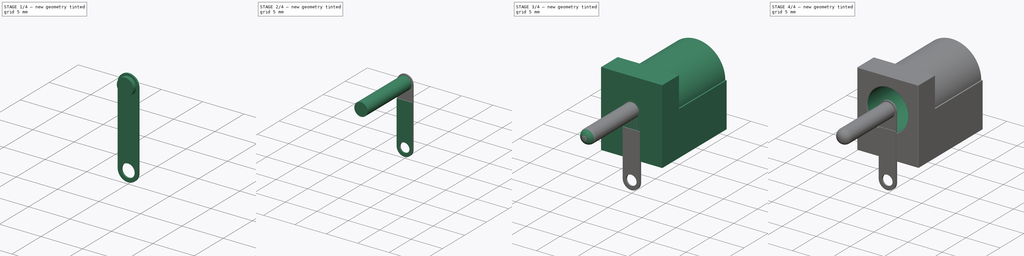
[diagram: build sequence overview — one tinted view per stage of 4, left to right]
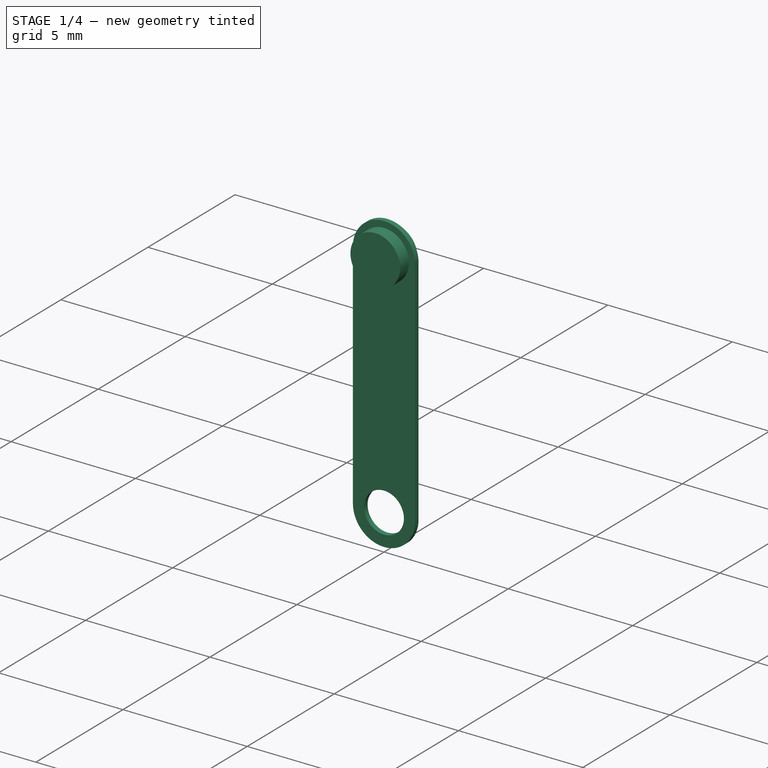
[diagram: stage 1 of 4 — iso view after this stage's code; geometry added in this stage tinted green]
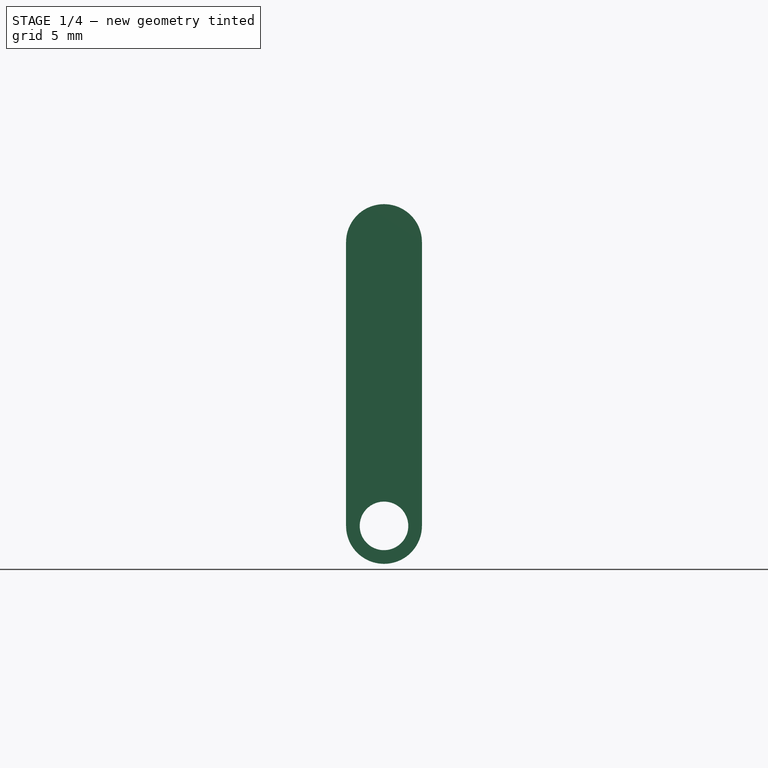
[diagram: stage 1 of 4 — front view after this stage's code; geometry added in this stage tinted green]
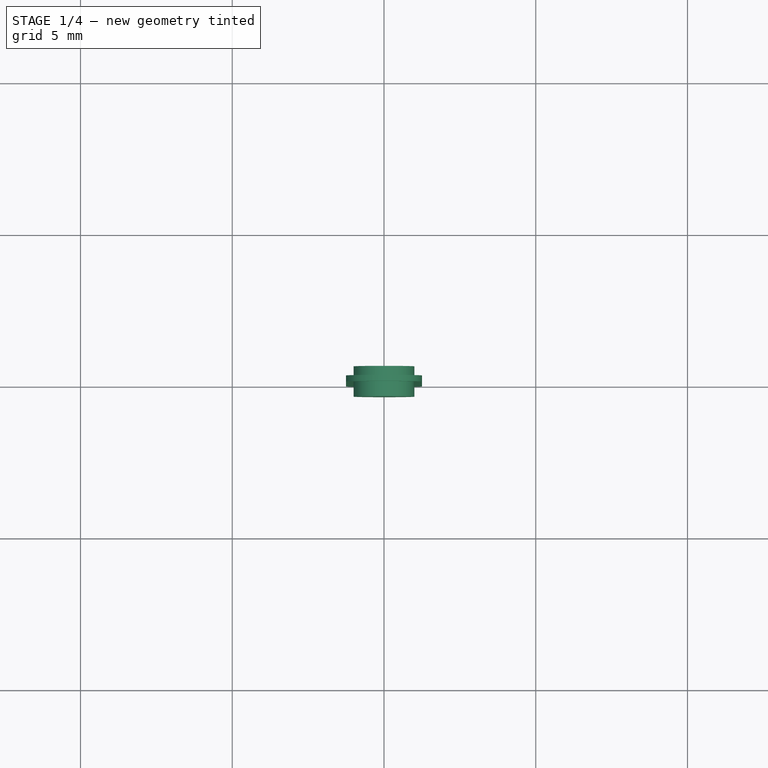
[diagram: stage 1 of 4 — top view after this stage's code; geometry added in this stage tinted green]
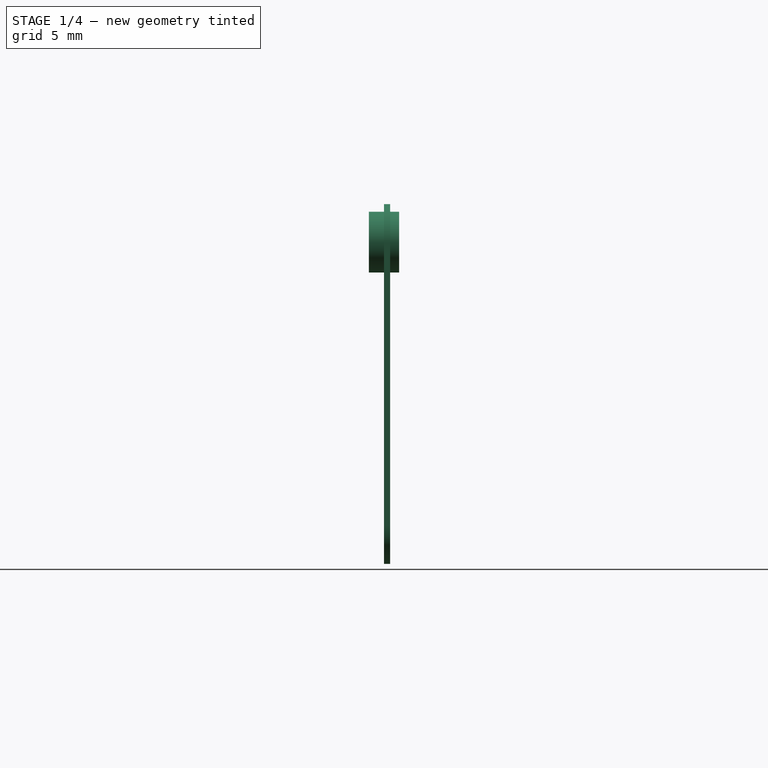
[diagram: stage 1 of 4 — right view after this stage's code; geometry added in this stage tinted green]
FCSTD DOCUMENT  (FreeCAD 0.17R13522 (Git))
Label: NINIGI-PC-GK2.1
License: All rights reserved
LicenseURL: http://fr.wikipedia.org/wiki/<copyright redacted>
objects: Sketcher::SketchObject×8, PartDesign::Pad×7, PartDesign::Body×5, PartDesign::Fillet×2, PartDesign::Pocket×1
note: 31 computed .brp shape members not serialized (recipe doc carries the construction recipe); baked Part::Feature solids carry a one-line shape summary decoded from their .brp

FEATURE [PartDesign::Body] Body003
  Group = -> [Sketch005,Pad004]
  Origin = -> Origin003
  Placement = pos=(4.8,11,0) rot=(0,0,1;1.5708rad)
  Tip = -> Pad004
FEATURE [Sketcher::SketchObject] Sketch006
  MapMode = 5
  Placement = pos=(0,0,0) rot=(1,0,0;1.5708rad)
  Support = -> [XZ_Plane004]
  expr: Constraints[9] = 4.0999999999999996 - 2.5 / 2 + 6.5
  sketch-geometry (6):
    g0: LineSegment StartX=1.25 StartY=-2.4e-11 StartZ=0 EndX=1.25 EndY=-9.35 EndZ=0
    g1: LineSegment StartX=-1.25 StartY=-9.35 StartZ=0 EndX=-1.25 EndY=-2.4e-11 EndZ=0
    g2: ArcOfCircle CenterX=0 CenterY=-9.35 CenterZ=0 NormalX=0 NormalY=0 NormalZ=1 AngleXU=0 Radius=1.25 StartAngle=3.14159 EndAngle=6.28319
    g3: Circle CenterX=0 CenterY=-9.35 CenterZ=0 NormalX=0 NormalY=0 NormalZ=1 AngleXU=0 Radius=0.8
    g4: ArcOfCircle CenterX=0 CenterY=0 CenterZ=0 NormalX=0 NormalY=0 NormalZ=1 AngleXU=0 Radius=1.25 StartAngle=-1.9e-11 EndAngle=3.14159
    g5: Circle CenterX=0 CenterY=0 CenterZ=0 NormalX=0 NormalY=0 NormalZ=1 AngleXU=0 Radius=0.8
  constraints (17):
    c: Vertical(g0)
    c: Vertical(g1)
    c: Coincident(g2,g0)
    c: Horizontal(g1,g0)
    c: Coincident(g3,g2)
    c: Coincident(g2,g1)
    c: DistanceX(g1,g0) = 2.5
    c: Horizontal(g2,g0)
    c: Radius(g3) = 0.8
    c: DistanceY(g2,g1) = 9.35
    c: DistanceY(g1,g-1) = 0
    c: Coincident(g4,g1)
    c: Coincident(g4,g0)
    c: Coincident(g4,g-1)
    c: Horizontal(g0,g1)
    c: Coincident(g5,g-1)
    c: Radius(g5) = 0.8
FEATURE [PartDesign::Pad] Pad005
  Length = 0.2
  Length2 = 100
  Placement = pos=(0,0,0) rot=(1,0,0;1.5708rad)
  Profile = -> Sketch006
  Reversed = true
  Type = 0
FEATURE [Sketcher::SketchObject] Sketch007
  MapMode = 5
  Placement = pos=(0,0,0) rot=(1,0,0;1.5708rad)
  Support = -> [XZ_Plane004]
  sketch-geometry (1):
    g0: Circle CenterX=0 CenterY=0 CenterZ=0 NormalX=0 NormalY=0 NormalZ=1 AngleXU=0 Radius=1
  constraints (2):
    c: Coincident(g0,g-1)
    c: Radius(g0) = 1
FEATURE [PartDesign::Pad] Pad006
  BaseFeature = -> Pad005
  Length = 1
  Length2 = 100
  Midplane = true
  Placement = pos=(0,0,0) rot=(1,0,0;1.5708rad)
  Profile = -> Sketch007
  Type = 0
FEATURE [PartDesign::Body] Body004
  Group = -> [Sketch006,Pad005,Sketch007,Pad006]
  Origin = -> Origin004
  Placement = pos=(0,13.5,0) rot=(0,0,1;0rad)
  Tip = -> Pad006
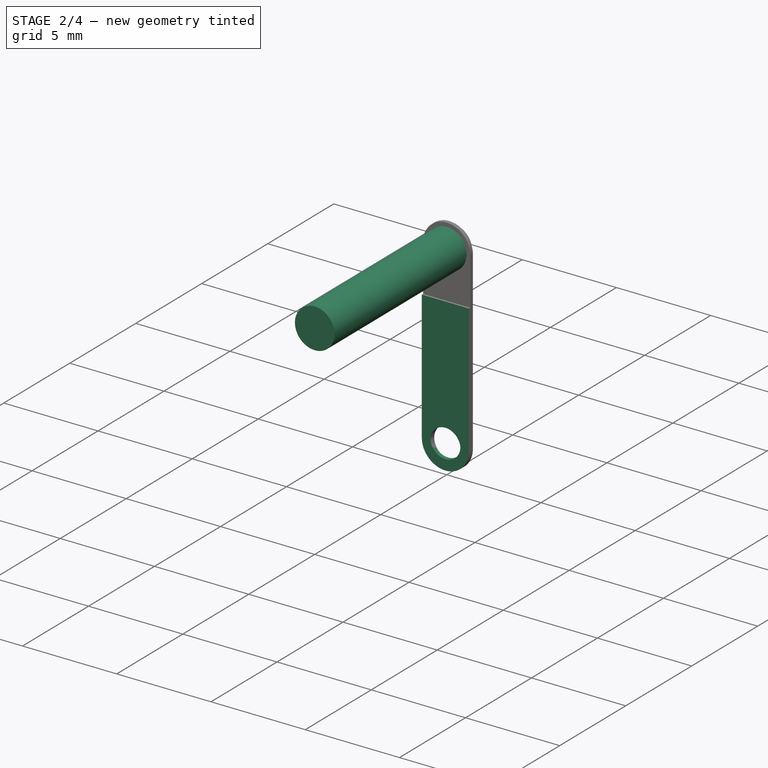
[diagram: stage 2 of 4 — iso view after this stage's code; geometry added in this stage tinted green]
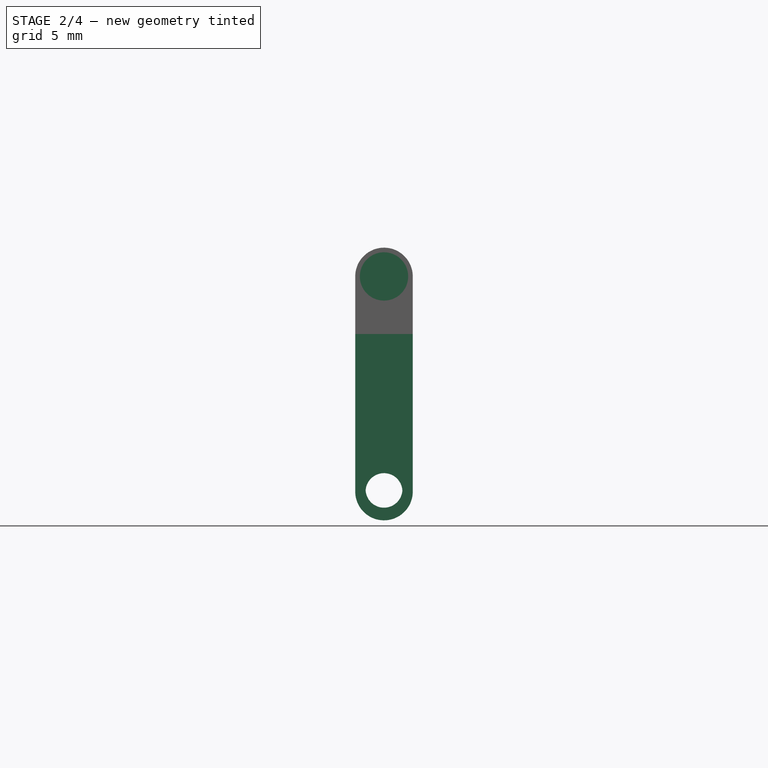
[diagram: stage 2 of 4 — front view after this stage's code; geometry added in this stage tinted green]
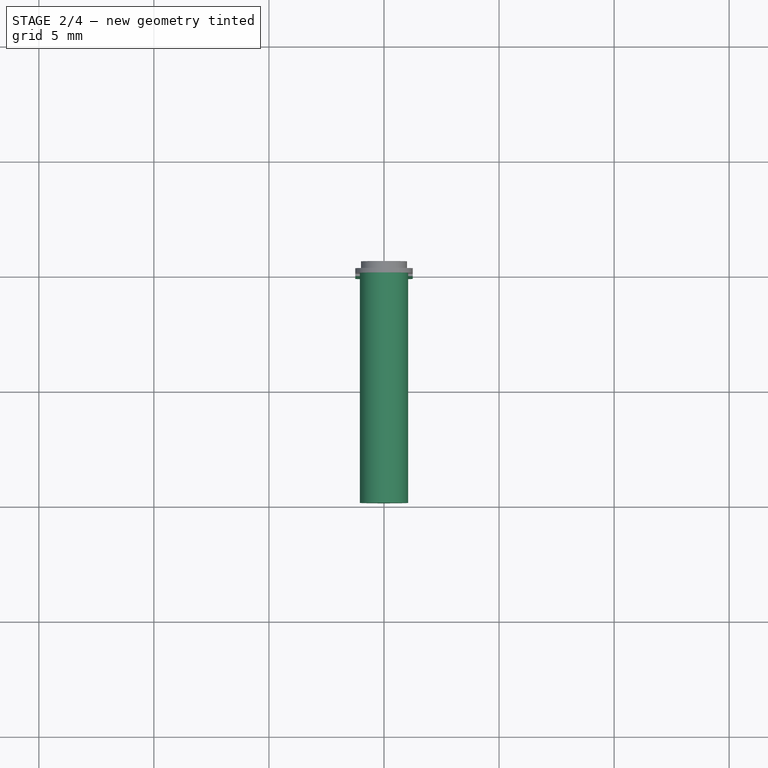
[diagram: stage 2 of 4 — top view after this stage's code; geometry added in this stage tinted green]
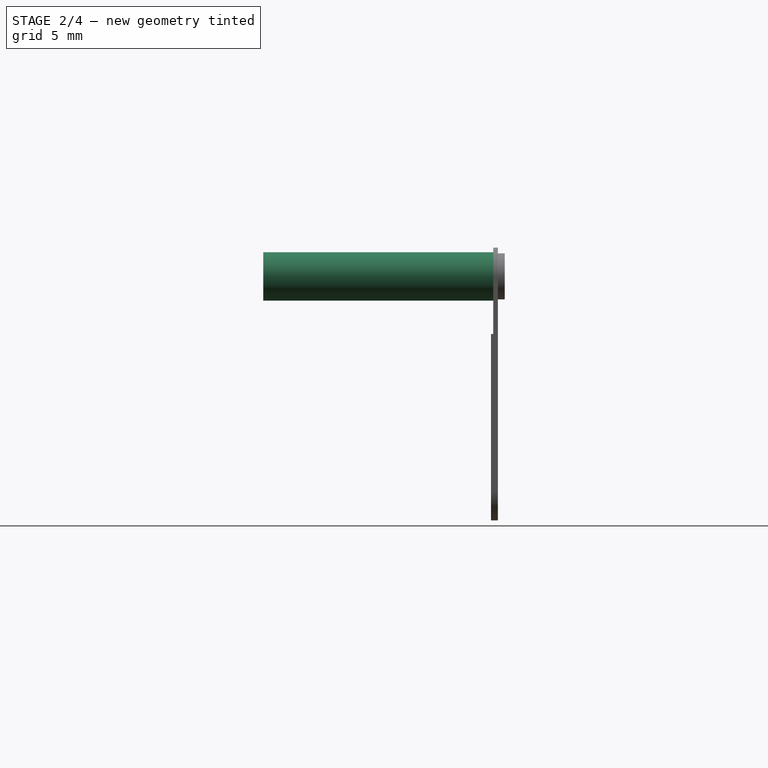
[diagram: stage 2 of 4 — right view after this stage's code; geometry added in this stage tinted green]
FEATURE [PartDesign::Body] Body
  Group = -> [Sketch,Pad,Sketch001,Pad001,Sketch002,Pocket,Fillet]
  Origin = -> Origin
  Tip = -> Fillet
FEATURE [Sketcher::SketchObject] Sketch003
  MapMode = 5
  Placement = pos=(0,0,0) rot=(1,0,0;1.5708rad)
  Support = -> [XZ_Plane001]
  sketch-geometry (1):
    g0: Circle CenterX=0 CenterY=0 CenterZ=0 NormalX=0 NormalY=0 NormalZ=1 AngleXU=0 Radius=1.05
  constraints (2):
    c: Coincident(g0,g-1)
    c: Radius(g0) = 1.05
FEATURE [PartDesign::Pad] Pad002
  Length = 10
  Length2 = 100
  Placement = pos=(0,0,0) rot=(1,0,0;1.5708rad)
  Profile = -> Sketch003
  Type = 0
FEATURE [PartDesign::Body] Body001
  Group = -> [Sketch003,Pad002,Fillet001]
  Origin = -> Origin001
  Placement = pos=(0,11,0) rot=(0,0,1;0rad)
  Tip = -> Fillet001
FEATURE [Sketcher::SketchObject] Sketch004
  MapMode = 5
  Placement = pos=(0,0,0) rot=(1,0,0;1.5708rad)
  Support = -> [XZ_Plane002]
  expr: Constraints[13] = 4.0999999999999996 - 2.5 / 2
  sketch-geometry (5):
    g0: LineSegment StartX=-1.25 StartY=-6.5 StartZ=0 EndX=1.25 EndY=-6.5 EndZ=0
    g1: LineSegment StartX=1.25 StartY=-6.5 StartZ=0 EndX=1.25 EndY=-9.35 EndZ=0
    g2: LineSegment StartX=-1.25 StartY=-9.35 StartZ=0 EndX=-1.25 EndY=-6.5 EndZ=0
    g3: ArcOfCircle CenterX=0 CenterY=-9.35 CenterZ=0 NormalX=0 NormalY=0 NormalZ=1 AngleXU=0 Radius=1.25 StartAngle=3.14159 EndAngle=6.28319
    g4: Circle CenterX=0 CenterY=-9.35 CenterZ=0 NormalX=0 NormalY=0 NormalZ=1 AngleXU=0 Radius=0.8
  constraints (15):
    c: Coincident(g0,g1)
    c: Coincident(g2,g0)
    c: Horizontal(g0)
    c: Vertical(g1)
    c: Vertical(g2)
    c: PointOnObject(g3,g-2)
    c: Coincident(g3,g1)
    c: Horizontal(g2,g1)
    c: Coincident(g4,g3)
    c: Coincident(g3,g2)
    c: DistanceX(g0,g0) = 2.5
    c: Horizontal(g3,g1)
    c: Radius(g4) = 0.8
    c: DistanceY(g3,g0) = 2.85
    c: DistanceY(g0,g-1) = 6.5
FEATURE [PartDesign::Pad] Pad003
  Length = 0.2
  Length2 = 100
  Midplane = true
  Placement = pos=(0,0,0) rot=(1,0,0;1.5708rad)
  Profile = -> Sketch004
  Type = 0
FEATURE [PartDesign::Body] Body002
  Group = -> [Sketch004,Pad003]
  Origin = -> Origin002
  Placement = pos=(0,7.5,0) rot=(0,0,1;0rad)
  Tip = -> Pad003
FEATURE [Sketcher::SketchObject] Sketch005
  MapMode = 5
  Placement = pos=(0,0,0) rot=(1,0,0;1.5708rad)
  Support = -> [XZ_Plane003]
  expr: Constraints[13] = 8 - 2.5 / 2
  sketch-geometry (5):
    g0: LineSegment StartX=-1.25 StartY=-2.5 StartZ=0 EndX=1.25 EndY=-2.5 EndZ=0
    g1: LineSegment StartX=1.25 StartY=-2.5 StartZ=0 EndX=1.25 EndY=-9.25 EndZ=0
    g2: LineSegment StartX=-1.25 StartY=-9.25 StartZ=0 EndX=-1.25 EndY=-2.5 EndZ=0
    g3: ArcOfCircle CenterX=0 CenterY=-9.25 CenterZ=0 NormalX=0 NormalY=0 NormalZ=1 AngleXU=0 Radius=1.25 StartAngle=3.14159 EndAngle=6.28319
    g4: Circle CenterX=0 CenterY=-9.25 CenterZ=0 NormalX=0 NormalY=0 NormalZ=1 AngleXU=0 Radius=0.8
  constraints (15):
    c: Coincident(g0,g1)
    c: Coincident(g2,g0)
    c: Horizontal(g0)
    c: Vertical(g1)
    c: Vertical(g2)
    c: PointOnObject(g3,g-2)
    c: Coincident(g3,g1)
    c: Horizontal(g2,g1)
    c: Coincident(g4,g3)
    c: Coincident(g3,g2)
    c: DistanceX(g0,g0) = 2.5
    c: Horizontal(g3,g1)
    c: Radius(g4) = 0.8
    c: DistanceY(g3,g0) = 6.75
    c: DistanceY(g0,g-1) = 2.5
FEATURE [PartDesign::Pad] Pad004
  Length = 0.2
  Length2 = 100
  Midplane = true
  Placement = pos=(0,0,0) rot=(1,0,0;1.5708rad)
  Profile = -> Sketch005
  Type = 0
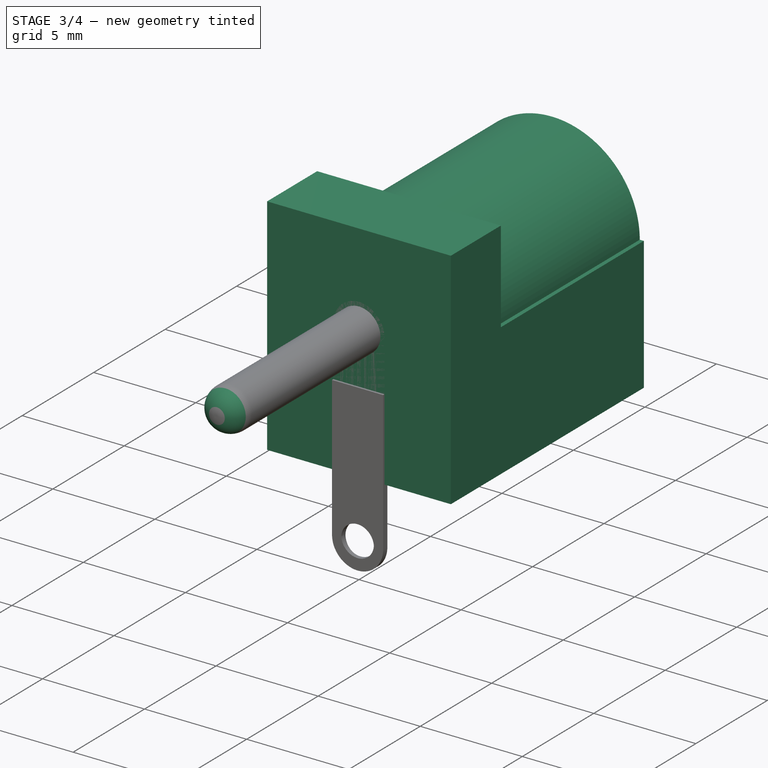
[diagram: stage 3 of 4 — iso view after this stage's code; geometry added in this stage tinted green]
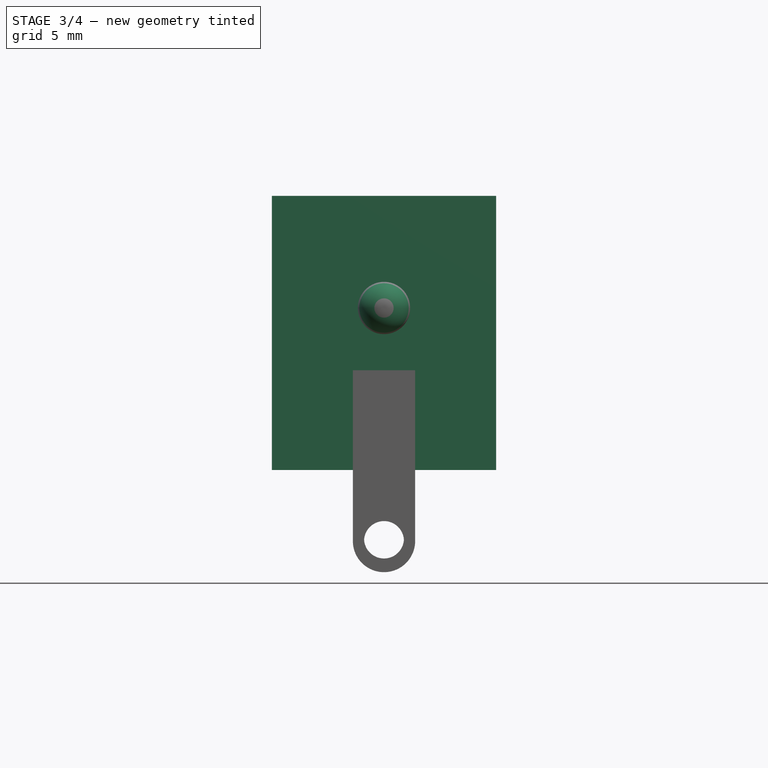
[diagram: stage 3 of 4 — front view after this stage's code; geometry added in this stage tinted green]
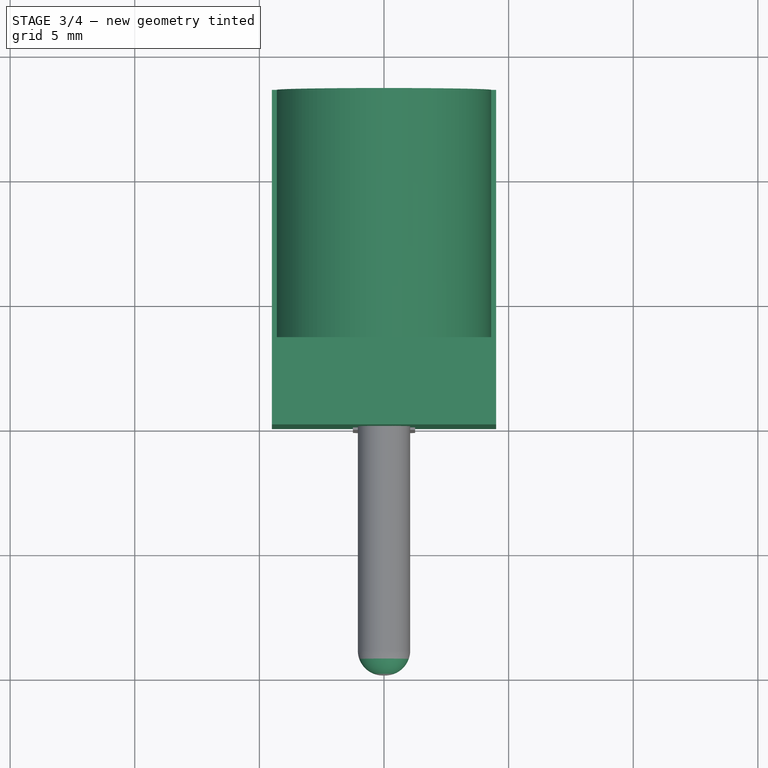
[diagram: stage 3 of 4 — top view after this stage's code; geometry added in this stage tinted green]
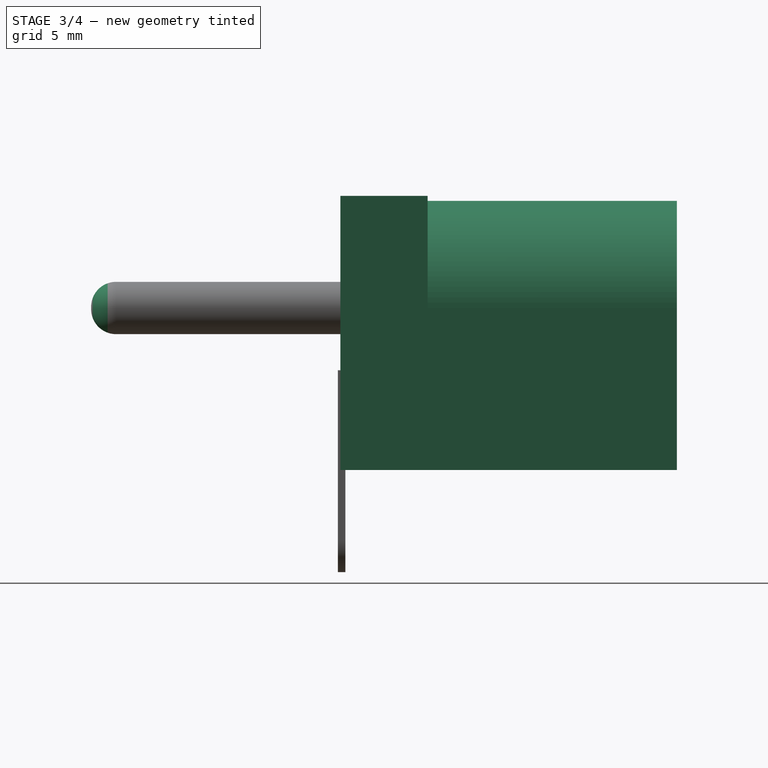
[diagram: stage 3 of 4 — right view after this stage's code; geometry added in this stage tinted green]
FEATURE [Sketcher::SketchObject] Sketch
  MapMode = 5
  Placement = pos=(0,0,0) rot=(1,0,0;1.5708rad)
  Support = -> [XZ_Plane]
  sketch-geometry (4):
    g0: LineSegment StartX=-4.5 StartY=-6.5 StartZ=0 EndX=4.5 EndY=-6.5 EndZ=0
    g1: LineSegment StartX=4.5 StartY=-6.5 StartZ=0 EndX=4.5 EndY=4.5 EndZ=0
    g2: LineSegment StartX=4.5 StartY=4.5 StartZ=0 EndX=-4.5 EndY=4.5 EndZ=0
    g3: LineSegment StartX=-4.5 StartY=4.5 StartZ=0 EndX=-4.5 EndY=-6.5 EndZ=0
  constraints (12):
    c: Coincident(g0,g1)
    c: Coincident(g1,g2)
    c: Coincident(g2,g3)
    c: Coincident(g3,g0)
    c: Horizontal(g0)
    c: Horizontal(g2)
    c: Vertical(g1)
    c: Vertical(g3)
    c: DistanceY(g3,g3) = 11
    c: DistanceX(g2,g2) = 9
    c: DistanceX(g0) = -4.5
    c: DistanceY(g0) = -6.5
FEATURE [PartDesign::Pad] Pad
  Length = 3.5
  Length2 = 100
  Placement = pos=(0,0,0) rot=(1,0,0;1.5708rad)
  Profile = -> Sketch
  Reversed = true
  Type = 0
FEATURE [Sketcher::SketchObject] Sketch001
  MapMode = 5
  Placement = pos=(0,0,0) rot=(1,0,0;1.5708rad)
  Support = -> [Pad]
  expr: Constraints[15] = 10.800000000000001 - 6.5
  sketch-geometry (6):
    g0: LineSegment StartX=-4.5 StartY=-6.5 StartZ=0 EndX=4.5 EndY=-6.5 EndZ=0
    g1: LineSegment StartX=4.5 StartY=-6.5 StartZ=0 EndX=4.5 EndY=0 EndZ=0
    g2: LineSegment StartX=-4.5 StartY=0 StartZ=0 EndX=-4.5 EndY=-6.5 EndZ=0
    g3: LineSegment StartX=4.5 StartY=0 StartZ=0 EndX=4.3 EndY=0 EndZ=0
    g4: LineSegment StartX=-4.5 StartY=0 StartZ=0 EndX=-4.3 EndY=0 EndZ=0
    g5: ArcOfCircle CenterX=0 CenterY=0 CenterZ=0 NormalX=0 NormalY=0 NormalZ=1 AngleXU=0 Radius=4.3 StartAngle=0 EndAngle=3.14159
  constraints (18):
    c: Coincident(g0,g1)
    c: Coincident(g2,g0)
    c: Horizontal(g0)
    c: Vertical(g1)
    c: Vertical(g2)
    c: DistanceX(g0) = -4.5
    c: DistanceY(g0) = -6.5
    c: Symmetric(g0,g0,g-2)
    c: Coincident(g3,g1)
    c: Coincident(g4,g2)
    c: Horizontal(g4)
    c: Horizontal(g3)
    c: Coincident(g5,g-1)
    c: Coincident(g5,g4)
    c: Coincident(g3,g5)
    c: Radius(g5) = 4.3
    c: PointOnObject(g2,g-1)
    c: PointOnObject(g1,g-1)
FEATURE [PartDesign::Pad] Pad001
  BaseFeature = -> Pad
  Length = 13.5
  Length2 = 100
  Placement = pos=(0,0,0) rot=(1,0,0;1.5708rad)
  Profile = -> Sketch001
  Reversed = true
  Type = 0
FEATURE [PartDesign::Fillet] Fillet001
  Base = -> Pad002 [Edge3]
  BaseFeature = -> Pad002
  Placement = pos=(0,0,0) rot=(1,0,0;1.5708rad)
  Radius = 1
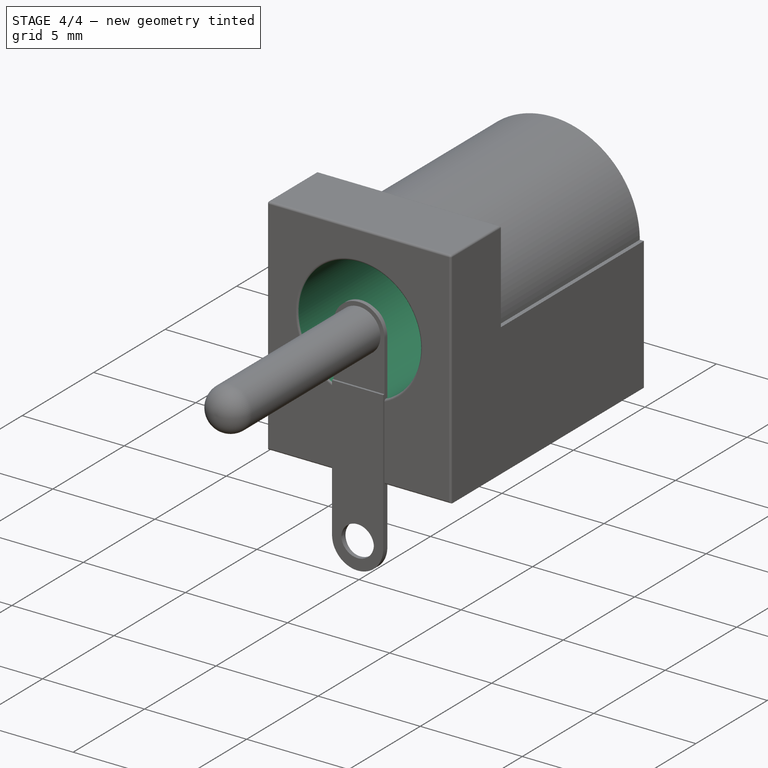
[diagram: stage 4 of 4 — iso view after this stage's code; geometry added in this stage tinted green]
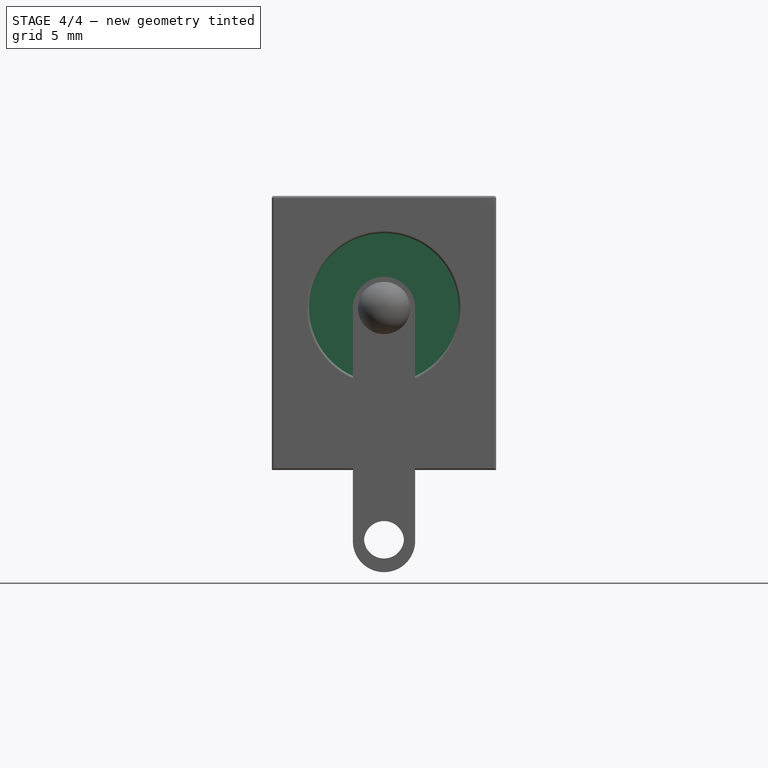
[diagram: stage 4 of 4 — front view after this stage's code; geometry added in this stage tinted green]
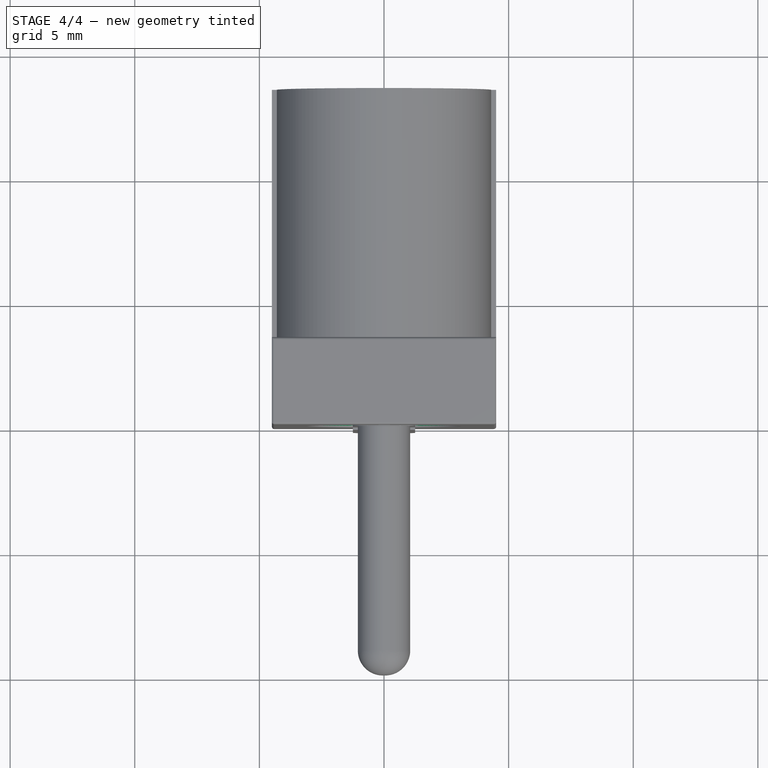
[diagram: stage 4 of 4 — top view after this stage's code; geometry added in this stage tinted green]
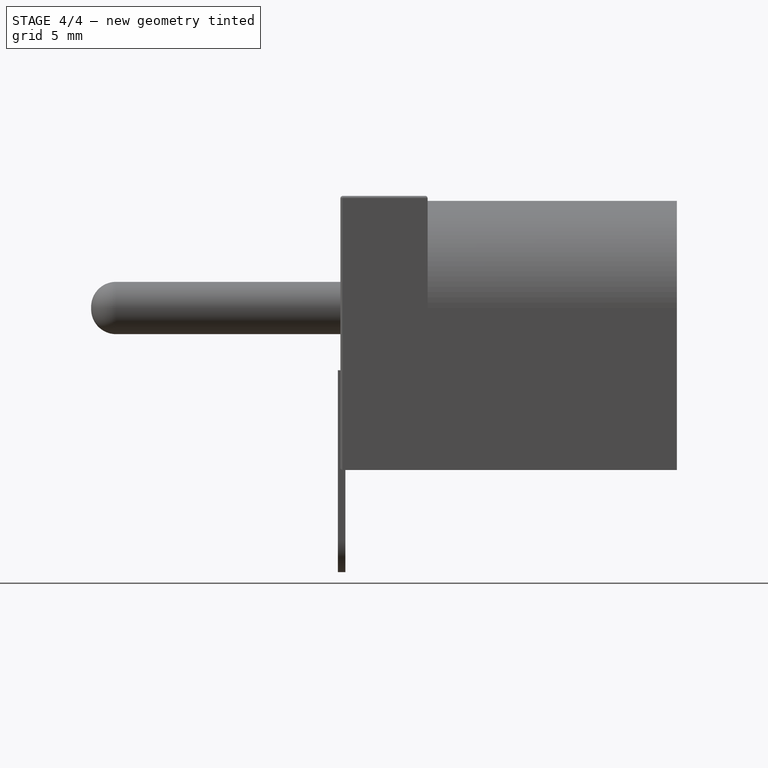
[diagram: stage 4 of 4 — right view after this stage's code; geometry added in this stage tinted green]
FEATURE [Sketcher::SketchObject] Sketch002
  MapMode = 5
  Placement = pos=(0,0,0) rot=(1,0,0;1.5708rad)
  Support = -> [Pad001]
  sketch-geometry (1):
    g0: Circle CenterX=0 CenterY=0 CenterZ=0 NormalX=0 NormalY=0 NormalZ=1 AngleXU=0 Radius=3
  constraints (3):
    c: PointOnObject(g0,g-2)
    c: Radius(g0) = 3
    c: Coincident(g0,g-1)
FEATURE [PartDesign::Pocket] Pocket
  BaseFeature = -> Pad001
  Length = 11
  Length2 = 100
  Placement = pos=(0,0,0) rot=(1,0,0;1.5708rad)
  Profile = -> Sketch002
  Type = 0
FEATURE [PartDesign::Fillet] Fillet
  Base = -> Pocket [Edge3,Edge1,Edge4,Edge2,Edge5,Edge8,Edge23,Edge24]
  BaseFeature = -> Pocket
  Placement = pos=(0,0,0) rot=(1,0,0;1.5708rad)
  Radius = 0.1
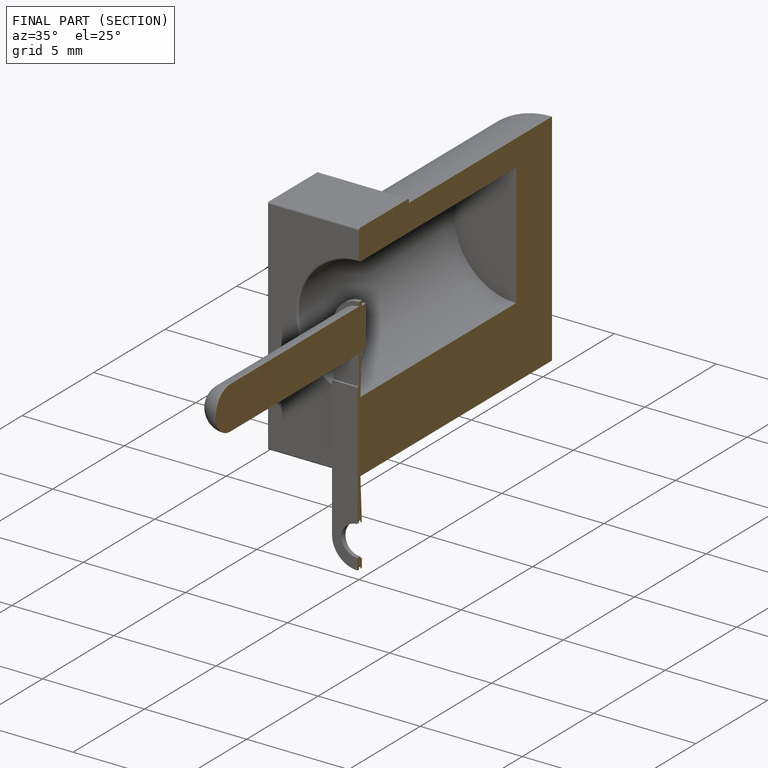
[diagram: finished part — half-section view (interior)]
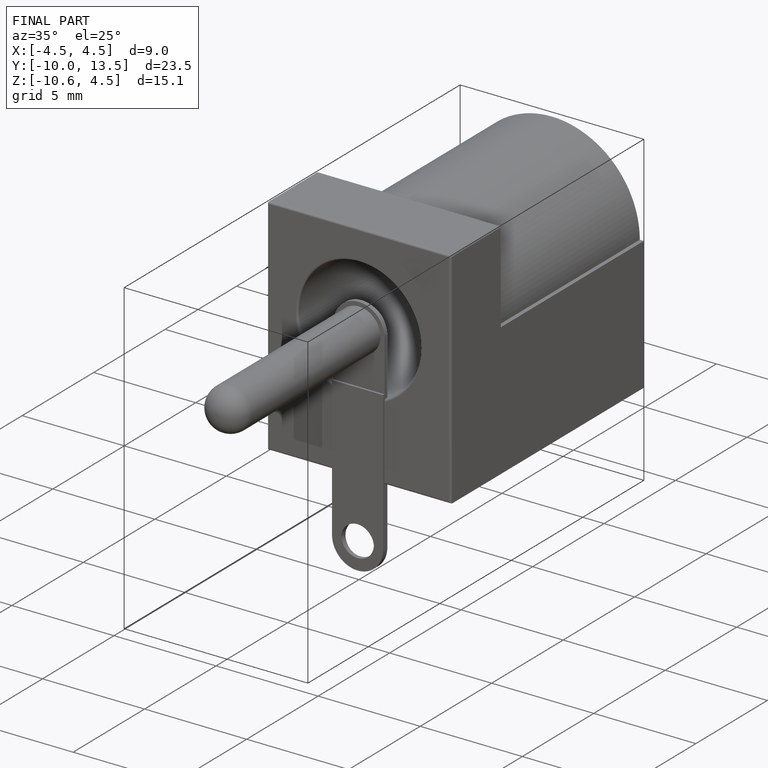
[diagram: finished part — iso view with bounding-box wireframe]
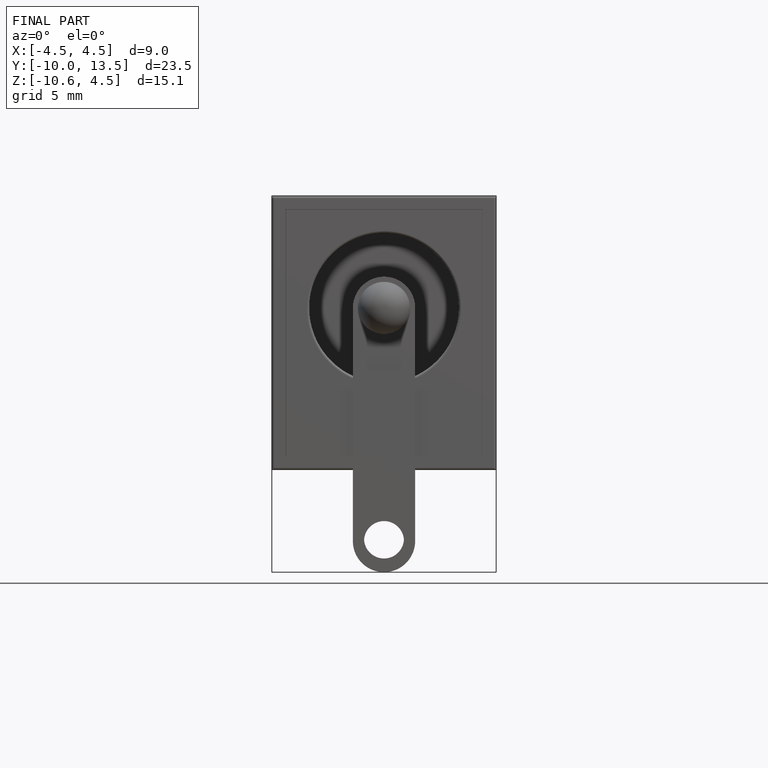
[diagram: finished part — front view with bounding-box wireframe]
